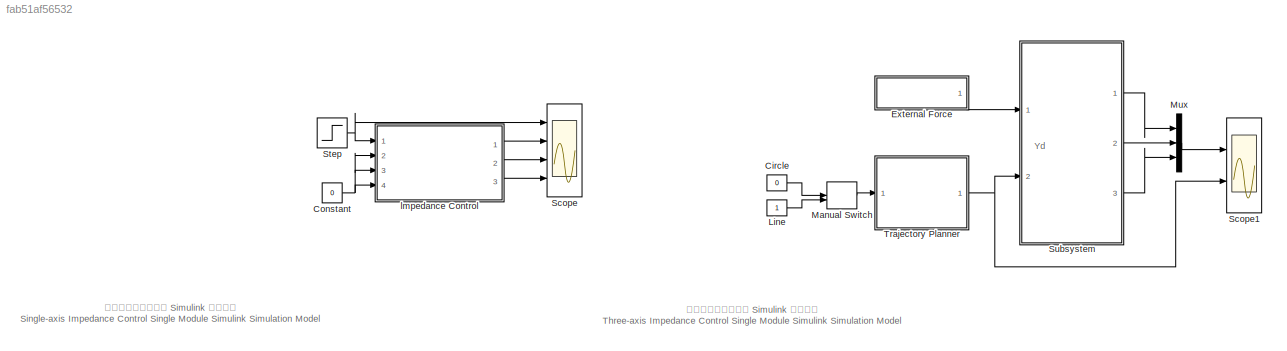
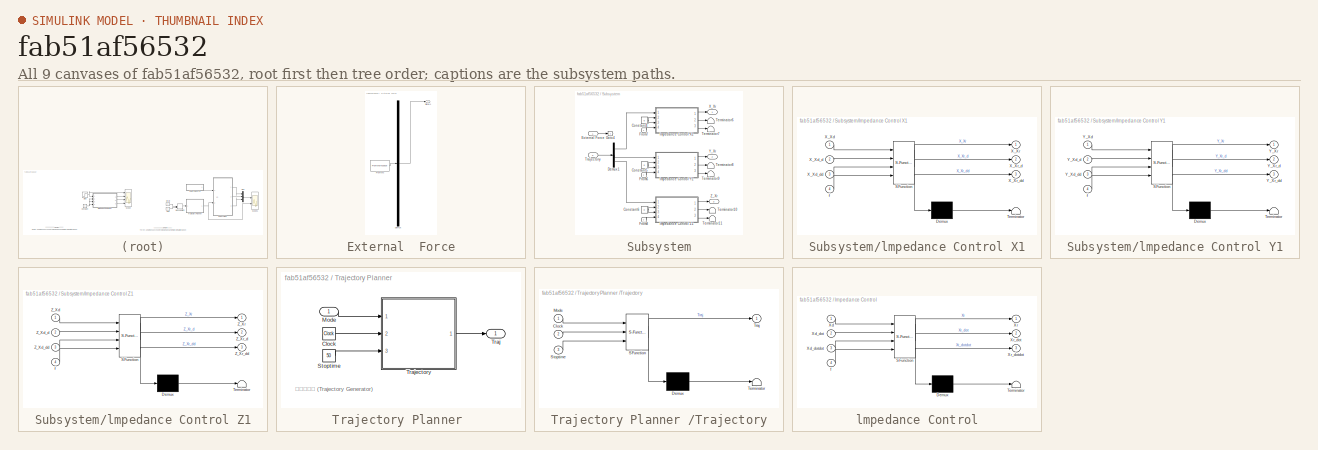
[diagram: thumbnail index - all 9 canvases of the model, root first then tree order]
MODEL slx_fab51af56532
KIND model
CONFIG AbsTol = auto
CONFIG EnableMultiTasking = off
CONFIG FixedStep = auto
CONFIG MaxStep = auto
CONFIG MinStep = auto
CONFIG RelTol = 1e-3
CONFIG SampleTimeConstraint = Unconstrained
CONFIG SolverName = VariableStepAuto
CONFIG StartTime = 0.0
CONFIG StopTime = 50
BLOCK [Constant] Circle
  NameLocation = left
  Value = 0
BLOCK [Constant] Constant
  Value = 0
BLOCK [SubSystem] External  Force
  ClipboardFcn = sigbuilder_block('clipboard');
  CloseFcn = sigbuilder_block('close');
  ContinueFcn = sigbuilder_block('continue');
  CopyFcn = sigbuilder_block('copy');
  DeleteFcn = sigbuilder_block('delete');
  LoadFcn = sigbuilder_block('load');
  MaskHideContents = on
  ModelCloseFcn = sigbuilder_block('modelClose');
  NameChangeFcn = sigbuilder_block('namechange');
  NameLocation = left
  OpenFcn = sigbuilder_block('open',[186 132 550.8 400.2 ]);
  PauseFcn = sigbuilder_block('pause');
  Ports = [0, 1]
  PreSaveFcn = sigbuilder_block('preSave');
  RequestExecContextInheritance = off
  StartFcn = sigbuilder_block('start');
  StopFcn = sigbuilder_block('stop');
  Tag = STV Subsys
BLOCK [Demux] External  Force/Demux
  DisplayOption = none
  Outputs = 1
  Ports = [1, 1]
  Tag = STV Demux
BLOCK [FromWorkspace] External  Force/FromWs
  Tag = STV FromWs
  VariableName = tuvar
BLOCK [Outport] External  Force/Signal 1
  Tag = STV Outport
BLOCK [Constant] Line
  NameLocation = left
BLOCK [ManualSwitch] Manual Switch
  CurrentSetting = 0
BLOCK [Mux] Mux
  DisplayOption = bar
  Inputs = 3
  Ports = [3, 1]
BLOCK [Scope] Scope
  Floating = off
  NumInputPorts = 4
  Ports = [4]
  ScopeSpecificationString = Simulink.scopes.TimeScopeBlockCfg('CurrentConfiguration', extmgr.ConfigurationSet(extmgr.Configuration('Core','General UI',true,'FigureColor',[1 1 1]),extmgr.Configuration('Core','Source UI',true),extmgr.Configuration('Sources','WiredSimulink',true),extmgr.Configuration('Visuals','Time Domain',true,'SerializedDisplays',{struct('MinYLimReal','-0.08864','MaxYLimReal','1.86061','YLabelReal','','MinYL...<+1984ch>
BLOCK [Scope] Scope1
  Floating = off
  NumInputPorts = 2
  Ports = [2]
  ScopeSpecificationString = Simulink.scopes.TimeScopeBlockCfg('CurrentConfiguration', extmgr.ConfigurationSet(extmgr.Configuration('Core','General UI',true,'FigureColor',[1 1 1]),extmgr.Configuration('Core','Source UI',true),extmgr.Configuration('Sources','WiredSimulink',true,'DataLoggingVariableName','ScopeData1'),extmgr.Configuration('Visuals','Time Domain',true,'SerializedDisplays',{struct('MinYLimReal','-0.05084','MaxYLi...<+2094ch>
BLOCK [Step] Step
  SampleTime = 0.005
  Time = 0
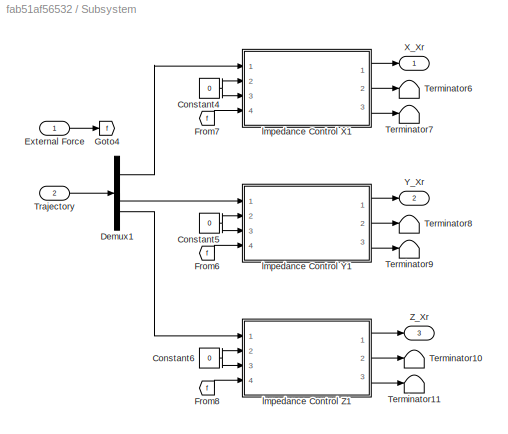
BLOCK [SubSystem] Subsystem
  Ports = [2, 3]
  RequestExecContextInheritance = off
BLOCK [Constant] Subsystem/Constant4
  Value = 0
BLOCK [Constant] Subsystem/Constant5
  Value = 0
BLOCK [Constant] Subsystem/Constant6
  Value = 0
BLOCK [Demux] Subsystem/Demux1
  Outputs = 3
  Ports = [1, 3]
BLOCK [Inport] Subsystem/External Force
BLOCK [From] Subsystem/From6
  GotoTag = f
BLOCK [From] Subsystem/From7
  GotoTag = f
BLOCK [From] Subsystem/From8
  GotoTag = f
BLOCK [Goto] Subsystem/Goto4
  GotoTag = f
BLOCK [Terminator] Subsystem/Terminator10
BLOCK [Terminator] Subsystem/Terminator11
BLOCK [Terminator] Subsystem/Terminator6
BLOCK [Terminator] Subsystem/Terminator7
BLOCK [Terminator] Subsystem/Terminator8
BLOCK [Terminator] Subsystem/Terminator9
BLOCK [Inport] Subsystem/Trajectory
  Port = 2
BLOCK [Outport] Subsystem/X_Xr
  NameLocation = right
BLOCK [Outport] Subsystem/Y_Xr
  NameLocation = right
  Port = 2
BLOCK [Outport] Subsystem/Z_Xr
  NameLocation = right
  Port = 3
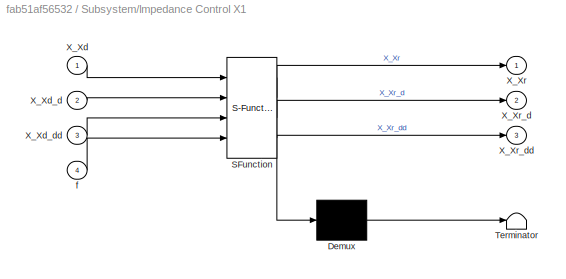
BLOCK [SubSystem] Subsystem/lmpedance Control X1
  ErrorFcn = Stateflow.Translate.translate
  PermitHierarchicalResolution = ExplicitOnly
  Ports = [4, 3]
  RequestExecContextInheritance = off
  SFBlockType = MATLAB Function
  TreatAsAtomicUnit = on
BLOCK [Demux] Subsystem/lmpedance Control X1/ Demux 
  Outputs = 1
  Ports = [1, 1]
BLOCK [S-Function] Subsystem/lmpedance Control X1/ SFunction 
  EnableBusSupport = on
  FunctionName = sf_sfun
  PortCounts = [4 4]
  Ports = [4, 4]
  SFcnIsStateOwnerBlock = off
  SFunctionDeploymentMode = off
  Tag = Stateflow S-Function 5
BLOCK [Terminator] Subsystem/lmpedance Control X1/ Terminator 
BLOCK [Inport] Subsystem/lmpedance Control X1/X_Xd
BLOCK [Inport] Subsystem/lmpedance Control X1/X_Xd_d
  Port = 2
BLOCK [Inport] Subsystem/lmpedance Control X1/X_Xd_dd
  Port = 3
BLOCK [Outport] Subsystem/lmpedance Control X1/X_Xr
BLOCK [Outport] Subsystem/lmpedance Control X1/X_Xr_d
  Port = 2
BLOCK [Outport] Subsystem/lmpedance Control X1/X_Xr_dd
  Port = 3
BLOCK [Inport] Subsystem/lmpedance Control X1/f
  Port = 4
BLOCK [SubSystem] Subsystem/lmpedance Control Y1
  ErrorFcn = Stateflow.Translate.translate
  PermitHierarchicalResolution = ExplicitOnly
  Ports = [4, 3]
  RequestExecContextInheritance = off
  SFBlockType = MATLAB Function
  TreatAsAtomicUnit = on
BLOCK [Demux] Subsystem/lmpedance Control Y1/ Demux 
  Outputs = 1
  Ports = [1, 1]
BLOCK [S-Function] Subsystem/lmpedance Control Y1/ SFunction 
  EnableBusSupport = on
  FunctionName = sf_sfun
  PortCounts = [4 4]
  Ports = [4, 4]
  SFcnIsStateOwnerBlock = off
  SFunctionDeploymentMode = off
  Tag = Stateflow S-Function 6
BLOCK [Terminator] Subsystem/lmpedance Control Y1/ Terminator 
BLOCK [Inport] Subsystem/lmpedance Control Y1/Y_Xd
BLOCK [Inport] Subsystem/lmpedance Control Y1/Y_Xd_d
  Port = 2
BLOCK [Inport] Subsystem/lmpedance Control Y1/Y_Xd_dd
  Port = 3
BLOCK [Outport] Subsystem/lmpedance Control Y1/Y_Xr
BLOCK [Outport] Subsystem/lmpedance Control Y1/Y_Xr_d
  Port = 2
BLOCK [Outport] Subsystem/lmpedance Control Y1/Y_Xr_dd
  Port = 3
BLOCK [Inport] Subsystem/lmpedance Control Y1/f
  Port = 4
BLOCK [SubSystem] Subsystem/lmpedance Control Z1
  ErrorFcn = Stateflow.Translate.translate
  PermitHierarchicalResolution = ExplicitOnly
  Ports = [4, 3]
  RequestExecContextInheritance = off
  SFBlockType = MATLAB Function
  TreatAsAtomicUnit = on
BLOCK [Demux] Subsystem/lmpedance Control Z1/ Demux 
  Outputs = 1
  Ports = [1, 1]
BLOCK [S-Function] Subsystem/lmpedance Control Z1/ SFunction 
  EnableBusSupport = on
  FunctionName = sf_sfun
  PortCounts = [4 4]
  Ports = [4, 4]
  SFcnIsStateOwnerBlock = off
  SFunctionDeploymentMode = off
  Tag = Stateflow S-Function 7
BLOCK [Terminator] Subsystem/lmpedance Control Z1/ Terminator 
BLOCK [Inport] Subsystem/lmpedance Control Z1/Z_Xd
BLOCK [Inport] Subsystem/lmpedance Control Z1/Z_Xd_d
  Port = 2
BLOCK [Inport] Subsystem/lmpedance Control Z1/Z_Xd_dd
  Port = 3
BLOCK [Outport] Subsystem/lmpedance Control Z1/Z_Xr
BLOCK [Outport] Subsystem/lmpedance Control Z1/Z_Xr_d
  Port = 2
BLOCK [Outport] Subsystem/lmpedance Control Z1/Z_Xr_dd
  Port = 3
BLOCK [Inport] Subsystem/lmpedance Control Z1/f
  Port = 4
BLOCK [SubSystem] Trajectory Planner 
  NameLocation = top
  Ports = [1, 1]
  RequestExecContextInheritance = off
BLOCK [Clock] Trajectory Planner /Clock
  NameLocation = left
BLOCK [Inport] Trajectory Planner /Mode
  NameLocation = left
BLOCK [Constant] Trajectory Planner /Stoptime
  NameLocation = left
  Value = 50
BLOCK [Outport] Trajectory Planner /Traj
  NameLocation = top
BLOCK [SubSystem] Trajectory Planner /Trajectory
  ErrorFcn = Stateflow.Translate.translate
  NameLocation = top
  PermitHierarchicalResolution = ExplicitOnly
  Ports = [3, 1]
  RequestExecContextInheritance = off
  SFBlockType = MATLAB Function
  TreatAsAtomicUnit = on
BLOCK [Demux] Trajectory Planner /Trajectory/ Demux 
  Outputs = 1
  Ports = [1, 1]
BLOCK [S-Function] Trajectory Planner /Trajectory/ SFunction 
  EnableBusSupport = on
  FunctionName = sf_sfun
  PortCounts = [3 2]
  Ports = [3, 2]
  SFcnIsStateOwnerBlock = off
  SFunctionDeploymentMode = off
  Tag = Stateflow S-Function 4
BLOCK [Terminator] Trajectory Planner /Trajectory/ Terminator 
BLOCK [Inport] Trajectory Planner /Trajectory/Clock
  Port = 2
BLOCK [Inport] Trajectory Planner /Trajectory/Mode
BLOCK [Inport] Trajectory Planner /Trajectory/Stoptime
  Port = 3
BLOCK [Outport] Trajectory Planner /Trajectory/Traj
  VectorParamsAs1DForOutWhenUnconnected = off
BLOCK [SubSystem] lmpedance Control
  ErrorFcn = Stateflow.Translate.translate
  PermitHierarchicalResolution = ExplicitOnly
  Ports = [4, 3]
  RequestExecContextInheritance = off
  SFBlockType = MATLAB Function
  TreatAsAtomicUnit = on
BLOCK [Demux] lmpedance Control/ Demux 
  Outputs = 1
  Ports = [1, 1]
BLOCK [S-Function] lmpedance Control/ SFunction 
  EnableBusSupport = on
  FunctionName = sf_sfun
  PortCounts = [4 4]
  Ports = [4, 4]
  SFcnIsStateOwnerBlock = off
  SFunctionDeploymentMode = off
  Tag = Stateflow S-Function 2
BLOCK [Terminator] lmpedance Control/ Terminator 
BLOCK [Inport] lmpedance Control/Xd
BLOCK [Inport] lmpedance Control/Xd_dot
  Port = 2
BLOCK [Inport] lmpedance Control/Xd_dotdot
  Port = 3
BLOCK [Outport] lmpedance Control/Xr
BLOCK [Outport] lmpedance Control/Xr_dot
  Port = 2
BLOCK [Outport] lmpedance Control/Xr_dotdot
  Port = 3
BLOCK [Inport] lmpedance Control/f
  Port = 4
ANNOTATION (root): 三轴阻抗控制单模块 Simulink 仿真模型 Three-axis Impedance Control Single Module Simulink Simulation Model
ANNOTATION (root): 单轴阻抗控制单模块 Simulink 仿真模型 Single-axis Impedance Control Single Module Simulink Simulation Model
ANNOTATION (root): Yd
ANNOTATION Trajectory Planner : 轨迹生成器 (Trajectory Generator)
LINE Circle:1 -> Manual Switch:1
NET Constant:1 -> lmpedance Control:2, lmpedance Control:3, lmpedance Control:4
LINE External  Force:1 -> Subsystem:1
LINE Line:1 -> Manual Switch:2
LINE Manual Switch:1 -> Trajectory Planner :1
LINE Mux:1 -> Scope1:1
NET Step:1 -> Scope:1, lmpedance Control:1
NET Subsystem/Constant4:1 -> Subsystem/lmpedance Control X1:2, Subsystem/lmpedance Control X1:3
NET Subsystem/Constant5:1 -> Subsystem/lmpedance Control Y1:2, Subsystem/lmpedance Control Y1:3
NET Subsystem/Constant6:1 -> Subsystem/lmpedance Control Z1:2, Subsystem/lmpedance Control Z1:3
LINE Subsystem/Demux1:1 -> Subsystem/lmpedance Control X1:1
LINE Subsystem/Demux1:2 -> Subsystem/lmpedance Control Y1:1
LINE Subsystem/Demux1:3 -> Subsystem/lmpedance Control Z1:1
LINE Subsystem/External Force:1 -> Subsystem/Goto4:1
LINE Subsystem/From6:1 -> Subsystem/lmpedance Control Y1:4
LINE Subsystem/From7:1 -> Subsystem/lmpedance Control X1:4
LINE Subsystem/From8:1 -> Subsystem/lmpedance Control Z1:4
LINE Subsystem/Trajectory:1 -> Subsystem/Demux1:1
LINE Subsystem/lmpedance Control X1:1 -> Subsystem/X_Xr:1
LINE Subsystem/lmpedance Control X1:2 -> Subsystem/Terminator6:1
LINE Subsystem/lmpedance Control X1:3 -> Subsystem/Terminator7:1
LINE Subsystem/lmpedance Control Y1:1 -> Subsystem/Y_Xr:1
LINE Subsystem/lmpedance Control Y1:2 -> Subsystem/Terminator8:1
LINE Subsystem/lmpedance Control Y1:3 -> Subsystem/Terminator9:1
LINE Subsystem/lmpedance Control Z1:1 -> Subsystem/Z_Xr:1
LINE Subsystem/lmpedance Control Z1:2 -> Subsystem/Terminator10:1
LINE Subsystem/lmpedance Control Z1:3 -> Subsystem/Terminator11:1
LINE Subsystem:1 -> Mux:1
LINE Subsystem:2 -> Mux:2
LINE Subsystem:3 -> Mux:3
LINE Trajectory Planner /Clock:1 -> Trajectory Planner /Trajectory:2
LINE Trajectory Planner /Mode:1 -> Trajectory Planner /Trajectory:1
LINE Trajectory Planner /Stoptime:1 -> Trajectory Planner /Trajectory:3
LINE Trajectory Planner /Trajectory:1 -> Trajectory Planner /Traj:1
NET Trajectory Planner :1 -> Scope1:2, Subsystem:2
LINE lmpedance Control:1 -> Scope:2
LINE lmpedance Control:2 -> Scope:3
LINE lmpedance Control:3 -> Scope:4
note: NET lines group one-source signal fan-out (src -> all destinations, sorted); 1:1 wires keep LINE
CHART lmpedance Control states=1 transitions=1
  STATE_LABEL 'eML_blk_kernel()'
  STATE_LABEL 'SCRIPT:\nfunction [Xr,Xr_dot,Xr_dotdot]  = fcnlmp(Xd,Xd_dot,Xd_dotdot,f)\nm =1;b = 4;k=1000;T = 0.005; % 参数初始化\npersistent Xr_pre Xr_dot_pre;% 持久变量 https://ww2.mathworks.cn/help/matlab/ref/persistent.html\nif isempty(Xr_pre) \n    Xr_pre = 0;\nend\nif isempty(Xr_dot_pre) \n    Xr_dot_pre = 0;\nend\nXr_dotdot_pre = Xd_dotdot + 1/m*(-f + b*(Xd_dot - Xr_dot_pre) + k*(Xd - Xr_pre)); % 上一采样时间 nT 机器人末端的实际运动加速度\nXr...<+332ch>'
CHART Trajectory Planner /Trajectory states=1 transitions=1
  STATE_LABEL 'eML_blk_kernel()'
  STATE_LABEL 'SCRIPT:\nfunction Traj = traj(Mode,Clock,Stoptime)\n    if Mode == 0 % 圆周轨迹\n        theta = 2*pi*Clock/Stoptime;\n        Xd = 0.2*cos(theta)-0.2;\n        Yd = 0;\n        Zd = 0.2*sin(theta);\n        Traj = [Xd;Yd;Zd];\n    else        % 直线轨迹\n        Xd = 0;\n        Yd = 0;\n        Zd = 0.2*Clock/Stoptime;\n        Traj = [Xd;Yd;Zd];\n    end\nend'
CHART Subsystem/lmpedance Control X1 states=1 transitions=1
  STATE_LABEL 'eML_blk_kernel()'
  STATE_LABEL 'SCRIPT:\nfunction [X_Xr,X_Xr_d,X_Xr_dd]  = fcnlmp(X_Xd,X_Xd_d,X_Xd_dd,f)\nm =1;b = 200;k=1200;T = 0.005; % 参数初始化\npersistent Xr_pre Xr_dot_pre;% 持久变量 https://ww2.mathworks.cn/help/matlab/ref/persistent.html\nif isempty(Xr_pre) \n    Xr_pre = 0;\nend\nif isempty(Xr_dot_pre) \n    Xr_dot_pre = 0;\nend\nXr_dotdot_pre = X_Xd_dd + 1/m*(-f + b*(X_Xd_d - Xr_dot_pre) + k*(X_Xd - Xr_pre)); % 上一采样时间 nT 机器人末端的实际运动加速度\n...<+334ch>'
CHART Subsystem/lmpedance Control Y1 states=1 transitions=1
  STATE_LABEL 'eML_blk_kernel()'
  STATE_LABEL 'SCRIPT:\nfunction [Y_Xr,Y_Xr_d,Y_Xr_dd]  = fcnlmp(Y_Xd,Y_Xd_d,Y_Xd_dd,f)\nm =1;b = 200;k=1200;T = 0.005; % 参数初始化\npersistent Xr_pre Xr_dot_pre;% 持久变量 https://ww2.mathworks.cn/help/matlab/ref/persistent.html\nif isempty(Xr_pre) \n    Xr_pre = 0;\nend\nif isempty(Xr_dot_pre) \n    Xr_dot_pre = 0;\nend\nXr_dotdot_pre = Y_Xd_dd + 1/m*(-f + b*(Y_Xd_d - Xr_dot_pre) + k*(Y_Xd - Xr_pre)); % 上一采样时间 nT 机器人末端的实际运动加速度\n...<+334ch>'
CHART Subsystem/lmpedance Control Z1 states=1 transitions=1
  STATE_LABEL 'eML_blk_kernel()'
  STATE_LABEL 'SCRIPT:\nfunction [Z_Xr,Z_Xr_d,Z_Xr_dd]  = fcnlmp(Z_Xd,Z_Xd_d,Z_Xd_dd,f)\nm =1;b = 200;k=1200;T = 0.005; % 参数初始化\npersistent Xr_pre Xr_dot_pre;% 持久变量 https://ww2.mathworks.cn/help/matlab/ref/persistent.html\nif isempty(Xr_pre) \n    Xr_pre = 0;\nend\nif isempty(Xr_dot_pre) \n    Xr_dot_pre = 0;\nend\nXr_dotdot_pre = Z_Xd_dd + 1/m*(-f + b*(Z_Xd_d - Xr_dot_pre) + k*(Z_Xd - Xr_pre)); % 上一采样时间 nT 机器人末端的实际运动加速度\n...<+336ch>'
CHART  states=0 transitions=0
CHART  states=0 transitions=0
CHART  states=0 transitions=0
CHART  states=0 transitions=0
CHART  states=0 transitions=0
